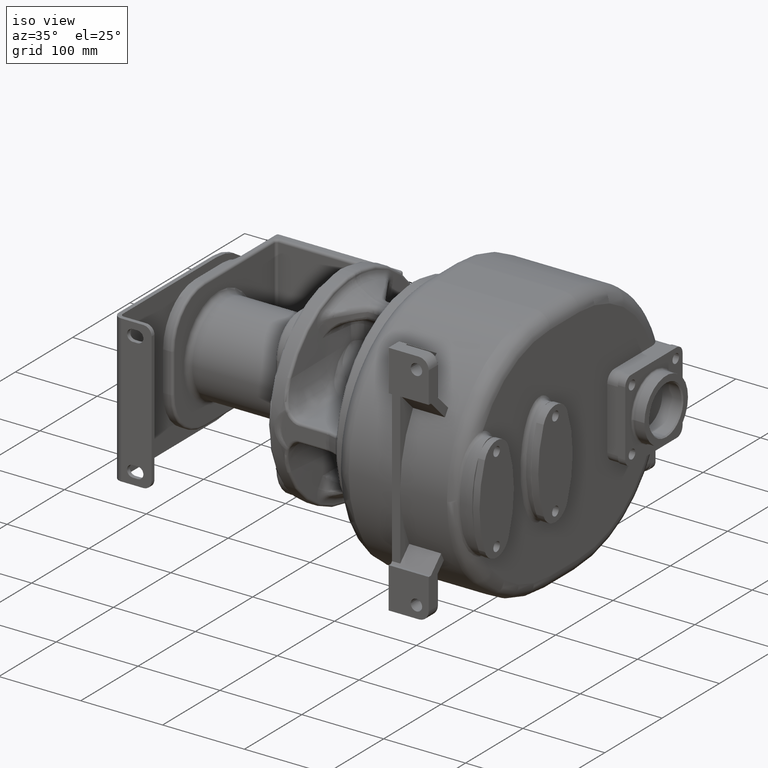
[diagram: clean part render]
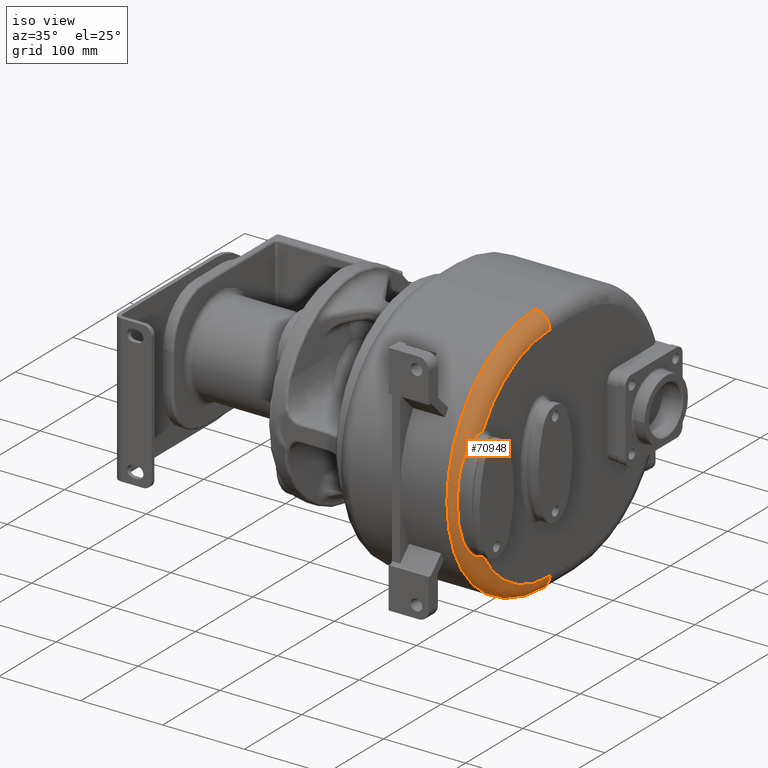
[diagram: same view with one face highlighted and labeled with its STEP entity id]
A machine part, iso view. The second image highlights one B-rep face of the part: STEP entity #70948.
In plain terms, the highlighted toroidal blend (fillet) surface has major radius 136 mm and minor (blend) radius 18 mm.
Its self-contained STEP definition (entity closure, byte-faithful):
#24447=CARTESIAN_POINT('',(5.1E1,1.6E2,-9.5E0));
#24448=DIRECTION('',(1.E0,0.E0,0.E0));
#24449=DIRECTION('',(0.E0,0.E0,1.E0));
#24450=AXIS2_PLACEMENT_3D('',#24447,#24448,#24449);
#24470=CARTESIAN_POINT('',(5.1E1,1.6E2,-9.5E0));
#24471=DIRECTION('',(1.E0,0.E0,0.E0));
#24472=DIRECTION('',(0.E0,-8.626127234458E-1,-5.058648923868E-1));
#24473=AXIS2_PLACEMENT_3D('',#24470,#24471,#24472);
#24721=CARTESIAN_POINT('',(5.100017032714E1,4.268467094927E1,5.929762101876E1));
#24722=CARTESIAN_POINT('',(5.100016947585E1,4.253288367734E1,5.930914865580E1));
#24723=CARTESIAN_POINT('',(5.099680482498E1,4.222845508362E1,5.932714527781E1));
#24724=CARTESIAN_POINT('',(5.098322190461E1,4.176934555555E1,5.933895051991E1));
#24725=CARTESIAN_POINT('',(5.096086394665E1,4.130833311881E1,5.933554657957E1));
#24726=CARTESIAN_POINT('',(5.093024997712E1,4.084576398964E1,5.931682791457E1));
#24727=CARTESIAN_POINT('',(5.090458180538E1,4.053667149319E1,5.929421995316E1));
#24728=CARTESIAN_POINT('',(5.089048209001E1,4.038195234550E1,5.928037740277E1));
#24730=CARTESIAN_POINT('',(5.089048209001E1,4.038195234550E1,5.928037740277E1));
#24731=CARTESIAN_POINT('',(5.087590235659E1,4.022176090612E1,5.926595770540E1));
#24732=CARTESIAN_POINT('',(5.084376525596E1,3.989845799807E1,5.923118999741E1));
#24733=CARTESIAN_POINT('',(5.078683303712E1,3.940508065056E1,5.916182856026E1));
#24734=CARTESIAN_POINT('',(5.072107973465E1,3.890287804302E1,5.907393857119E1));
#24735=CARTESIAN_POINT('',(5.064649950186E1,3.839170465894E1,5.896679977712E1));
#24736=CARTESIAN_POINT('',(5.056308852586E1,3.787145125994E1,5.883938907050E1));
#24737=CARTESIAN_POINT('',(5.047089453334E1,3.734211915720E1,5.869055403826E1));
#24738=CARTESIAN_POINT('',(5.037001673667E1,3.680386892679E1,5.851918018060E1));
#24739=CARTESIAN_POINT('',(5.026043277999E1,3.625631104807E1,5.832421911044E1));
#24740=CARTESIAN_POINT('',(5.014200285646E1,3.569849121800E1,5.810414741643E1));
#24741=CARTESIAN_POINT('',(5.001462235485E1,3.512974186025E1,5.785738597159E1));
#24742=CARTESIAN_POINT('',(4.987822024178E1,3.454956691271E1,5.758223660748E1));
#24743=CARTESIAN_POINT('',(4.973302157028E1,3.395862143920E1,5.727743901761E1));
#24744=CARTESIAN_POINT('',(4.957934708790E1,3.335769065548E1,5.694181475614E1));
#24745=CARTESIAN_POINT('',(4.941754500829E1,3.274744101449E1,5.657416313519E1));
#24746=CARTESIAN_POINT('',(4.924774602211E1,3.212749813802E1,5.617249825356E1));
#24747=CARTESIAN_POINT('',(4.907014642360E1,3.149770159180E1,5.573485429012E1));
#24748=CARTESIAN_POINT('',(4.888501056978E1,3.085806453507E1,5.525928091757E1));
#24749=CARTESIAN_POINT('',(4.869286058511E1,3.020937973260E1,5.474436525423E1));
#24750=CARTESIAN_POINT('',(4.849428593588E1,2.955258820365E1,5.418896329781E1));
#24751=CARTESIAN_POINT('',(4.828993152403E1,2.888839647223E1,5.359145846767E1));
#24752=CARTESIAN_POINT('',(4.808035046371E1,2.821697571136E1,5.294959297348E1));
#24753=CARTESIAN_POINT('',(4.786617350032E1,2.753873446326E1,5.226133598130E1));
#24754=CARTESIAN_POINT('',(4.764809358155E1,2.685423464321E1,5.152480898468E1));
#24755=CARTESIAN_POINT('',(4.742682056069E1,2.616417400542E1,5.073840624922E1));
#24756=CARTESIAN_POINT('',(4.720313325065E1,2.546930920009E1,4.990044178511E1));
#24757=CARTESIAN_POINT('',(4.697806918096E1,2.477057225142E1,4.900883734420E1));
#24758=CARTESIAN_POINT('',(4.675267523322E1,2.406904585678E1,4.806191818711E1));
#24759=CARTESIAN_POINT('',(4.652791260323E1,2.336560905084E1,4.705782588134E1));
#24760=CARTESIAN_POINT('',(4.630454134466E1,2.266078541267E1,4.599433362259E1));
#24761=CARTESIAN_POINT('',(4.608343166696E1,2.195535008552E1,4.486926552798E1));
#24762=CARTESIAN_POINT('',(4.586583708055E1,2.125061359389E1,4.368051990898E1));
#24763=CARTESIAN_POINT('',(4.565293209314E1,2.054803571134E1,4.242653902324E1));
#24764=CARTESIAN_POINT('',(4.544561793029E1,1.984845631487E1,4.110468951118E1));
#24765=CARTESIAN_POINT('',(4.524453417984E1,1.915247549404E1,3.971191089178E1));
#24766=CARTESIAN_POINT('',(4.505071051799E1,1.846143335722E1,3.824555044808E1));
#24767=CARTESIAN_POINT('',(4.486534081892E1,1.777724928806E1,3.670377327827E1));
#24768=CARTESIAN_POINT('',(4.468932614985E1,1.710158165100E1,3.508436776992E1));
#24769=CARTESIAN_POINT('',(4.452315469745E1,1.643551442278E1,3.338372413475E1));
#24770=CARTESIAN_POINT('',(4.436737921919E1,1.578064530275E1,3.159865908049E1));
#24771=CARTESIAN_POINT('',(4.422288909065E1,1.513934952556E1,2.972670832541E1));
#24772=CARTESIAN_POINT('',(4.409022383208E1,1.451403434757E1,2.776564952686E1));
#24773=CARTESIAN_POINT('',(4.396953202443E1,1.390713546972E1,2.571347106267E1));
#24774=CARTESIAN_POINT('',(4.386080690562E1,1.332144971796E1,2.356887914838E1));
#24775=CARTESIAN_POINT('',(4.376447018280E1,1.276083996650E1,2.133280434610E1));
#24776=CARTESIAN_POINT('',(4.368039999574E1,1.222889281057E1,1.900634826051E1));
#24777=CARTESIAN_POINT('',(4.360787983561E1,1.172886713596E1,1.659050396471E1));
#24778=CARTESIAN_POINT('',(4.354616062550E1,1.126450701923E1,1.408841051127E1));
#24779=CARTESIAN_POINT('',(4.349499120965E1,1.084049330979E1,1.150751254996E1));
#24780=CARTESIAN_POINT('',(4.345352630670E1,1.046065864059E1,8.854924189155E0));
#24781=CARTESIAN_POINT('',(4.342035439382E1,1.012811533825E1,6.137957091119E0));
#24782=CARTESIAN_POINT('',(4.339440783788E1,9.845954504600E0,3.365224547904E0));
#24783=CARTESIAN_POINT('',(4.337518602922E1,9.617235156480E0,
5.466380932992E-1));
#24784=CARTESIAN_POINT('',(4.336184392175E1,9.444126033693E0,
-2.307945445732E0));
#24785=CARTESIAN_POINT('',(4.335322752768E1,9.327935783703E0,
-5.188546289976E0));
#24786=CARTESIAN_POINT('',(4.334882565275E1,9.269753733208E0,
-8.084810688991E0));
#24787=CARTESIAN_POINT('',(4.334886299055E1,9.270464313536E0,
-1.098615281585E1));
#24788=CARTESIAN_POINT('',(4.335335370682E1,9.330061641889E0,
-1.388185653650E1));
#24789=CARTESIAN_POINT('',(4.336213741017E1,9.447651601381E0,
-1.676093869698E1));
#24790=CARTESIAN_POINT('',(4.337557261018E1,9.621978456579E0,
-1.961306478254E1));
#24791=CARTESIAN_POINT('',(4.339488120785E1,9.851740318840E0,
-2.242842277288E1));
#24792=CARTESIAN_POINT('',(4.342094321300E1,1.013476306016E1,
-2.519728927674E1));
#24793=CARTESIAN_POINT('',(4.345433672891E1,1.046802255874E1,
-2.790987403965E1));
#24794=CARTESIAN_POINT('',(4.349590719433E1,1.084828309679E1,
-3.055785607148E1));
#24795=CARTESIAN_POINT('',(4.354714974747E1,1.127250525099E1,
-3.313406520806E1));
#24796=CARTESIAN_POINT('',(4.360896091309E1,1.173691861668E1,
-3.563153601946E1));
#24797=CARTESIAN_POINT('',(4.368166168494E1,1.223693446785E1,
-3.804298384706E1));
#24798=CARTESIAN_POINT('',(4.376578255188E1,1.276868364289E1,
-4.036536647128E1));
#24799=CARTESIAN_POINT('',(4.386213286639E1,1.332897134750E1,
-4.259758148739E1));
#24800=CARTESIAN_POINT('',(4.397087424086E1,1.391424241222E1,
-4.473846894211E1));
#24801=CARTESIAN_POINT('',(4.409161985405E1,1.452064880191E1,
-4.678699840261E1));
#24802=CARTESIAN_POINT('',(4.422421431620E1,1.514533753596E1,
-4.874471726534E1));
#24803=CARTESIAN_POINT('',(4.436860932249E1,1.578600788382E1,
-5.061377388441E1));
#24804=CARTESIAN_POINT('',(4.452431389814E1,1.644035532747E1,
-5.239652486976E1));
#24805=CARTESIAN_POINT('',(4.469052239441E1,1.710616910654E1,
-5.409562521601E1));
#24806=CARTESIAN_POINT('',(4.486652945475E1,1.778167022726E1,
-5.571399356356E1));
#24807=CARTESIAN_POINT('',(4.505182628359E1,1.846550554107E1,
-5.725445503860E1));
#24808=CARTESIAN_POINT('',(4.524553129657E1,1.915605318812E1,
-5.871932578481E1));
#24809=CARTESIAN_POINT('',(4.544655726037E1,1.985161540761E1,
-6.011077836919E1));
#24810=CARTESIAN_POINT('',(4.565379931096E1,2.055085747809E1,
-6.143164924332E1));
#24811=CARTESIAN_POINT('',(4.586658138365E1,2.125304282285E1,
-6.268471894123E1));
#24812=CARTESIAN_POINT('',(4.608402097749E1,2.195729756963E1,
-6.387249450437E1));
#24813=CARTESIAN_POINT('',(4.630499328079E1,2.266226896187E1,
-6.499667126625E1));
#24814=CARTESIAN_POINT('',(4.652829685345E1,2.336674655870E1,
-6.605942203388E1));
#24815=CARTESIAN_POINT('',(4.675295352257E1,2.406986876820E1,
-6.706300776193E1));
#24816=CARTESIAN_POINT('',(4.697820827777E1,2.477101512974E1,
-6.800941899781E1));
#24817=CARTESIAN_POINT('',(4.720312058803E1,2.546932547155E1,
-6.890050870820E1));
#24818=CARTESIAN_POINT('',(4.742669082325E1,2.616381521530E1,
-6.973802612411E1));
#24819=CARTESIAN_POINT('',(4.764792015825E1,2.685363390765E1,
-7.052407710522E1));
#24820=CARTESIAN_POINT('',(4.786594452421E1,2.753796123637E1,
-7.126046661774E1));
#24821=CARTESIAN_POINT('',(4.808005377525E1,2.821601968505E1,
-7.194863281343E1));
#24822=CARTESIAN_POINT('',(4.828955797543E1,2.888722476742E1,
-7.259040367142E1));
#24823=CARTESIAN_POINT('',(4.849384739451E1,2.955120628652E1,
-7.318781774884E1));
#24824=CARTESIAN_POINT('',(4.869239050487E1,3.020781673455E1,
-7.374308951093E1));
#24825=CARTESIAN_POINT('',(4.888452407995E1,3.085637760067E1,
-7.425794953446E1));
#24826=CARTESIAN_POINT('',(4.906964283038E1,3.149591807805E1,
-7.473354121930E1));
#24827=CARTESIAN_POINT('',(4.924721820640E1,3.212559708013E1,
-7.517121379274E1));
#24828=CARTESIAN_POINT('',(4.941698945411E1,3.274539821632E1,
-7.557290377126E1));
#24829=CARTESIAN_POINT('',(4.957876549096E1,3.335548484309E1,
-7.594056306681E1));
#24830=CARTESIAN_POINT('',(4.973241649024E1,3.395621688594E1,
-7.627615200033E1));
#24831=CARTESIAN_POINT('',(4.987761582960E1,3.454704291288E1,
-7.658096952386E1));
#24832=CARTESIAN_POINT('',(5.001405377875E1,3.512723275497E1,
-7.685620320163E1));
#24833=CARTESIAN_POINT('',(5.014150233205E1,3.569615640170E1,
-7.710312865146E1));
#24834=CARTESIAN_POINT('',(5.026000494985E1,3.625420405882E1,
-7.732338742268E1));
#24835=CARTESIAN_POINT('',(5.036964443432E1,3.680194218289E1,
-7.751852362202E1));
#24836=CARTESIAN_POINT('',(5.047054062113E1,3.734018952328E1,
-7.769000662944E1));
#24837=CARTESIAN_POINT('',(5.056272381547E1,3.786936314985E1,
-7.783896693919E1));
#24838=CARTESIAN_POINT('',(5.064615561698E1,3.838952837890E1,
-7.796641062392E1));
#24839=CARTESIAN_POINT('',(5.072078164153E1,3.890074765531E1,
-7.807356712972E1));
#24840=CARTESIAN_POINT('',(5.078661250698E1,3.940324053667E1,
-7.816151866419E1));
#24841=CARTESIAN_POINT('',(5.084364311308E1,3.989725768652E1,
-7.823091043868E1));
#24842=CARTESIAN_POINT('',(5.087587554209E1,4.022130472615E1,
-7.826591338586E1));
#24843=CARTESIAN_POINT('',(5.089049203499E1,4.038195139128E1,
-7.828037795136E1));
#24845=CARTESIAN_POINT('',(5.089049203499E1,4.038195139128E1,
-7.828037795136E1));
#24846=CARTESIAN_POINT('',(5.090459353827E1,4.053668390821E1,
-7.829422083715E1));
#24847=CARTESIAN_POINT('',(5.093024842681E1,4.084580093536E1,
-7.831682592214E1));
#24848=CARTESIAN_POINT('',(5.096086837656E1,4.130839883011E1,
-7.833554965333E1));
#24849=CARTESIAN_POINT('',(5.098322669657E1,4.176941413742E1,
-7.833895368874E1));
#24850=CARTESIAN_POINT('',(5.099679600776E1,4.222850087631E1,
-7.832714017593E1));
#24851=CARTESIAN_POINT('',(5.100019033041E1,4.253290190786E1,
-7.830914665063E1));
#24852=CARTESIAN_POINT('',(5.100019114263E1,4.268467140928E1,
-7.829762089593E1));
#24854=CARTESIAN_POINT('',(3.3E1,1.6E2,1.265E2));
#24855=DIRECTION('',(0.E0,-1.E0,0.E0));
#24856=DIRECTION('',(1.E0,0.E0,0.E0));
#24857=AXIS2_PLACEMENT_3D('',#24854,#24855,#24856);
#25146=CARTESIAN_POINT('',(3.3E1,1.6E2,-1.455E2));
#25147=DIRECTION('',(0.E0,1.E0,0.E0));
#25148=DIRECTION('',(1.E0,0.E0,0.E0));
#25149=AXIS2_PLACEMENT_3D('',#25146,#25147,#25148);
#26073=CARTESIAN_POINT('',(3.3E1,1.6E2,-9.5E0));
#26074=DIRECTION('',(1.E0,0.E0,0.E0));
#26075=DIRECTION('',(0.E0,0.E0,1.E0));
#26076=AXIS2_PLACEMENT_3D('',#26073,#26074,#26075);
#28595=CARTESIAN_POINT('',(5.1E1,1.6E2,-1.455E2));
#28596=VERTEX_POINT('',#28595);
#28597=CARTESIAN_POINT('',(3.3E1,1.6E2,-1.635E2));
#28598=VERTEX_POINT('',#28597);
#28599=CARTESIAN_POINT('',(3.3E1,1.6E2,1.445E2));
#28600=VERTEX_POINT('',#28599);
#28602=CARTESIAN_POINT('',(5.1E1,1.6E2,1.265E2));
#28604=VERTEX_POINT('',#28602);
#28773=VERTEX_POINT('',#24721);
#28774=VERTEX_POINT('',#24728);
#28777=VERTEX_POINT('',#24843);
#28779=VERTEX_POINT('',#24852);
#70928=CARTESIAN_POINT('',(3.3E1,1.6E2,-9.5E0));
#70929=DIRECTION('',(-1.E0,0.E0,0.E0));
#70930=DIRECTION('',(0.E0,7.059550923393E-3,9.999750810599E-1));
#70931=AXIS2_PLACEMENT_3D('',#70928,#70929,#70930);
#70932=TOROIDAL_SURFACE('',#70931,1.36E2,1.8E1);
#70934=ORIENTED_EDGE('',*,*,#70933,.T.);
#70936=ORIENTED_EDGE('',*,*,#70935,.T.);
#70937=ORIENTED_EDGE('',*,*,#70918,.T.);
#70938=ORIENTED_EDGE('',*,*,#70703,.T.);
#70940=ORIENTED_EDGE('',*,*,#70939,.T.);
#70942=ORIENTED_EDGE('',*,*,#70941,.F.);
#70944=ORIENTED_EDGE('',*,*,#70943,.F.);
#70945=ORIENTED_EDGE('',*,*,#70689,.T.);
#70946=EDGE_LOOP('',(#70934,#70936,#70937,#70938,#70940,#70942,#70944,#70945));
#70947=FACE_OUTER_BOUND('',#70946,.F.);
#70948=ADVANCED_FACE('',(#70947),#70932,.T.);
#24451=CIRCLE('',#24450,1.36E2);
#24474=CIRCLE('',#24473,1.36E2);
#24729=B_SPLINE_CURVE_WITH_KNOTS('',3,(#24721,#24722,#24723,#24724,#24725,
#24726,#24727,#24728),.UNSPECIFIED.,.F.,.F.,(4,1,1,1,1,4),(0.E0,2.E-1,4.E-1,
6.E-1,8.E-1,1.E0),.UNSPECIFIED.);
#24844=B_SPLINE_CURVE_WITH_KNOTS('',3,(#24730,#24731,#24732,#24733,#24734,
#24735,#24736,#24737,#24738,#24739,#24740,#24741,#24742,#24743,#24744,#24745,
#24746,#24747,#24748,#24749,#24750,#24751,#24752,#24753,#24754,#24755,#24756,
#24757,#24758,#24759,#24760,#24761,#24762,#24763,#24764,#24765,#24766,#24767,
#24768,#24769,#24770,#24771,#24772,#24773,#24774,#24775,#24776,#24777,#24778,
#24779,#24780,#24781,#24782,#24783,#24784,#24785,#24786,#24787,#24788,#24789,
#24790,#24791,#24792,#24793,#24794,#24795,#24796,#24797,#24798,#24799,#24800,
#24801,#24802,#24803,#24804,#24805,#24806,#24807,#24808,#24809,#24810,#24811,
#24812,#24813,#24814,#24815,#24816,#24817,#24818,#24819,#24820,#24821,#24822,
#24823,#24824,#24825,#24826,#24827,#24828,#24829,#24830,#24831,#24832,#24833,
#24834,#24835,#24836,#24837,#24838,#24839,#24840,#24841,#24842,#24843),
.UNSPECIFIED.,.F.,.F.,(4,1,1,1,1,1,1,1,1,1,1,1,1,1,1,1,1,1,1,1,1,1,1,1,1,1,1,1,
1,1,1,1,1,1,1,1,1,1,1,1,1,1,1,1,1,1,1,1,1,1,1,1,1,1,1,1,1,1,1,1,1,1,1,1,1,1,1,1,
1,1,1,1,1,1,1,1,1,1,1,1,1,1,1,1,1,1,1,1,1,1,1,1,1,1,1,1,1,1,1,1,1,1,1,1,1,1,1,1,
1,1,1,4),(0.E0,9.009009009009E-3,1.801801801802E-2,2.702702702703E-2,
3.603603603604E-2,4.504504504505E-2,5.405405405405E-2,6.306306306306E-2,
7.207207207207E-2,8.108108108108E-2,9.009009009009E-2,9.909909909910E-2,
1.081081081081E-1,1.171171171171E-1,1.261261261261E-1,1.351351351351E-1,
1.441441441441E-1,1.531531531532E-1,1.621621621622E-1,1.711711711712E-1,
1.801801801802E-1,1.891891891892E-1,1.981981981982E-1,2.072072072072E-1,
2.162162162162E-1,2.252252252252E-1,2.342342342342E-1,2.432432432432E-1,
2.522522522523E-1,2.612612612613E-1,2.702702702703E-1,2.792792792793E-1,
2.882882882883E-1,2.972972972973E-1,3.063063063063E-1,3.153153153153E-1,
3.243243243243E-1,3.333333333333E-1,3.423423423423E-1,3.513513513514E-1,
3.603603603604E-1,3.693693693694E-1,3.783783783784E-1,3.873873873874E-1,
3.963963963964E-1,4.054054054054E-1,4.144144144144E-1,4.234234234234E-1,
4.324324324324E-1,4.414414414414E-1,4.504504504505E-1,4.594594594595E-1,
4.684684684685E-1,4.774774774775E-1,4.864864864865E-1,4.954954954955E-1,
5.045045045045E-1,5.135135135135E-1,5.225225225225E-1,5.315315315315E-1,
5.405405405405E-1,5.495495495495E-1,5.585585585586E-1,5.675675675676E-1,
5.765765765766E-1,5.855855855856E-1,5.945945945946E-1,6.036036036036E-1,
6.126126126126E-1,6.216216216216E-1,6.306306306306E-1,6.396396396396E-1,
6.486486486486E-1,6.576576576577E-1,6.666666666667E-1,6.756756756757E-1,
6.846846846847E-1,6.936936936937E-1,7.027027027027E-1,7.117117117117E-1,
7.207207207207E-1,7.297297297297E-1,7.387387387387E-1,7.477477477477E-1,
7.567567567568E-1,7.657657657658E-1,7.747747747748E-1,7.837837837838E-1,
7.927927927928E-1,8.018018018018E-1,8.108108108108E-1,8.198198198198E-1,
8.288288288288E-1,8.378378378378E-1,8.468468468468E-1,8.558558558559E-1,
8.648648648649E-1,8.738738738739E-1,8.828828828829E-1,8.918918918919E-1,
9.009009009009E-1,9.099099099099E-1,9.189189189189E-1,9.279279279279E-1,
9.369369369369E-1,9.459459459459E-1,9.549549549550E-1,9.639639639640E-1,
9.729729729730E-1,9.819819819820E-1,9.909909909910E-1,1.E0),.UNSPECIFIED.);
#24853=B_SPLINE_CURVE_WITH_KNOTS('',3,(#24845,#24846,#24847,#24848,#24849,
#24850,#24851,#24852),.UNSPECIFIED.,.F.,.F.,(4,1,1,1,1,4),(0.E0,2.E-1,4.E-1,
6.E-1,8.E-1,1.E0),.UNSPECIFIED.);
#24858=CIRCLE('',#24857,1.8E1);
#25150=CIRCLE('',#25149,1.8E1);
#26077=CIRCLE('',#26076,1.54E2);
#70689=EDGE_CURVE('',#28604,#28773,#24451,.T.);
#70703=EDGE_CURVE('',#28779,#28596,#24474,.T.);
#70918=EDGE_CURVE('',#28777,#28779,#24853,.T.);
#70933=EDGE_CURVE('',#28773,#28774,#24729,.T.);
#70935=EDGE_CURVE('',#28774,#28777,#24844,.T.);
#70939=EDGE_CURVE('',#28596,#28598,#25150,.T.);
#70941=EDGE_CURVE('',#28600,#28598,#26077,.T.);
#70943=EDGE_CURVE('',#28604,#28600,#24858,.T.);